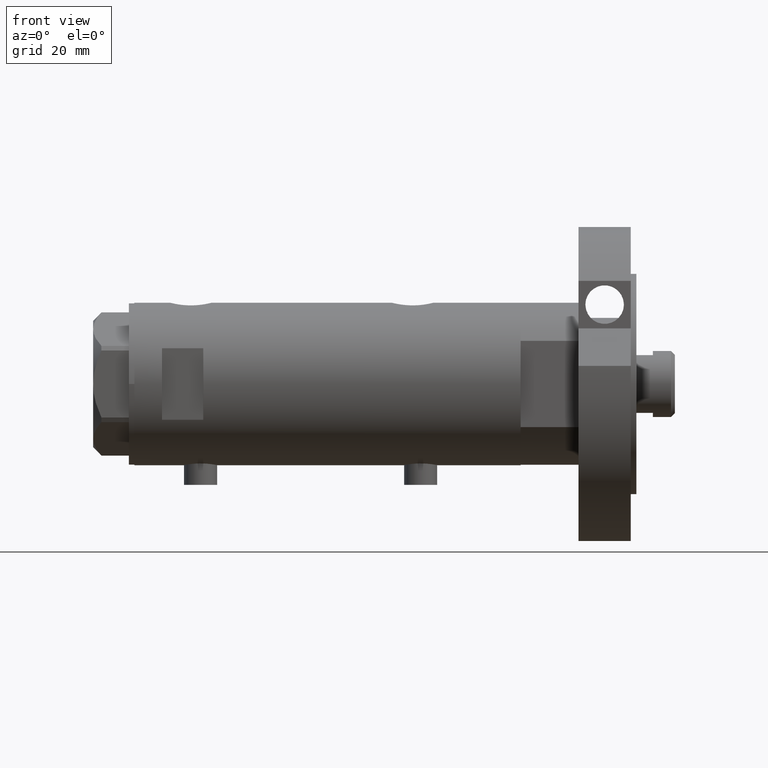
[diagram: clean part render]
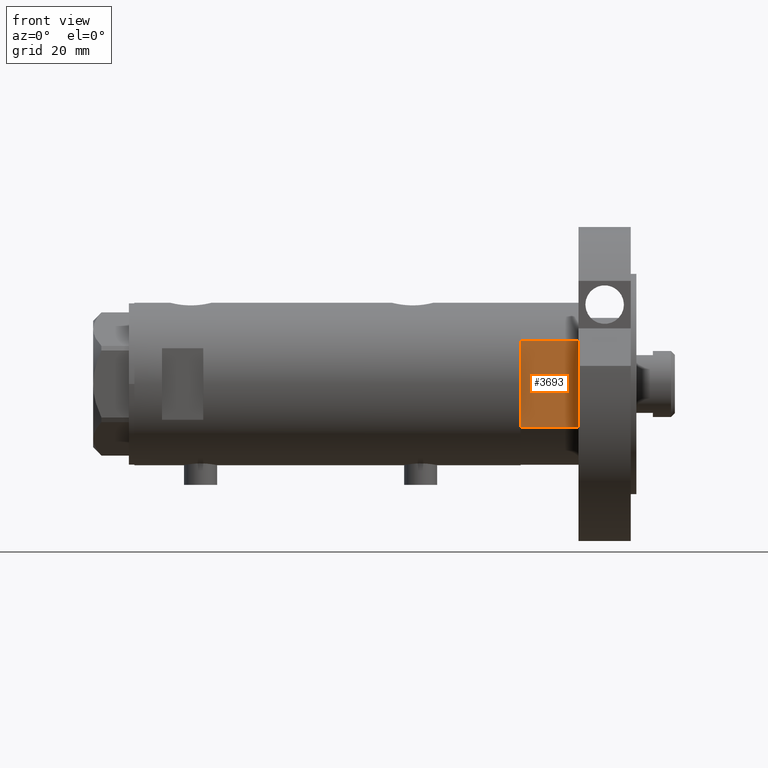
[diagram: same view with one face highlighted and labeled with its STEP entity id]
A machine part, front view. The second image highlights one B-rep face of the part: STEP entity #3693.
In plain terms, the highlighted planar face has unit normal (-0, 1, 0).
Its self-contained STEP definition (entity closure, byte-faithful):
#130 = VERTEX_POINT ( 'NONE', #529 ) ;
#258 = LINE ( 'NONE', #1303, #2573 ) ;
#330 = VERTEX_POINT ( 'NONE', #3723 ) ;
#425 = VERTEX_POINT ( 'NONE', #1024 ) ;
#449 = DIRECTION ( 'NONE',  ( 0.000000000000000000, -0.000000000000000000, 1.000000000000000000 ) ) ;
#529 = CARTESIAN_POINT ( 'NONE',  ( -15.66045976336582690, -25.00000000000000000, 0.000000000000000000 ) ) ;
#531 = LINE ( 'NONE', #2404, #1854 ) ;
#556 = ORIENTED_EDGE ( 'NONE', *, *, #3583, .T. ) ;
#633 = EDGE_CURVE ( 'NONE', #425, #330, #2866, .T. ) ;
#698 = VECTOR ( 'NONE', #1731, 1000.000000000000000 ) ;
#753 = DIRECTION ( 'NONE',  ( -1.000000000000000000, -0.000000000000000000, -0.000000000000000000 ) ) ;
#809 = LINE ( 'NONE', #5958, #3343 ) ;
#858 = DIRECTION ( 'NONE',  ( -1.000000000000000000, -0.000000000000000000, -0.000000000000000000 ) ) ;
#916 = DIRECTION ( 'NONE',  ( -0.000000000000000000, 1.000000000000000000, 0.000000000000000000 ) ) ;
#1024 = CARTESIAN_POINT ( 'NONE',  ( 15.66045976336583401, -25.00000000000000000, 0.000000000000000000 ) ) ;
#1212 = EDGE_CURVE ( 'NONE', #425, #2294, #5090, .T. ) ;
#1303 = CARTESIAN_POINT ( 'NONE',  ( -15.66045976336583401, -25.00000000000000000, 0.000000000000000000 ) ) ;
#1325 = DIRECTION ( 'NONE',  ( -1.000000000000000000, -0.000000000000000000, -0.000000000000000000 ) ) ;
#1439 = VECTOR ( 'NONE', #858, 1000.000000000000000 ) ;
#1710 = DIRECTION ( 'NONE',  ( -1.000000000000000000, -0.000000000000000000, -0.000000000000000000 ) ) ;
#1731 = DIRECTION ( 'NONE',  ( -0.000000000000000000, -0.000000000000000000, 1.000000000000000000 ) ) ;
#1790 = ORIENTED_EDGE ( 'NONE', *, *, #633, .T. ) ;
#1854 = VECTOR ( 'NONE', #1325, 1000.000000000000000 ) ;
#2251 = VERTEX_POINT ( 'NONE', #3319 ) ;
#2294 = VERTEX_POINT ( 'NONE', #2470 ) ;
#2321 = PLANE ( 'NONE',  #3247 ) ;
#2404 = CARTESIAN_POINT ( 'NONE',  ( -15.66045976336583401, -25.00000000000000000, 0.000000000000000000 ) ) ;
#2470 = CARTESIAN_POINT ( 'NONE',  ( 7.141428428542853091, -25.00000000000000000, 0.000000000000000000 ) ) ;
#2573 = VECTOR ( 'NONE', #753, 1000.000000000000000 ) ;
#2601 = CARTESIAN_POINT ( 'NONE',  ( 15.66045976336583401, -25.00000000000000000, 0.000000000000000000 ) ) ;
#2866 = LINE ( 'NONE', #2601, #3522 ) ;
#3001 = ORIENTED_EDGE ( 'NONE', *, *, #5767, .F. ) ;
#3186 = CARTESIAN_POINT ( 'NONE',  ( -15.66045976336583401, -25.00000000000000000, 0.000000000000000000 ) ) ;
#3220 = FACE_OUTER_BOUND ( 'NONE', #3308, .T. ) ;
#3247 = AXIS2_PLACEMENT_3D ( 'NONE', #6079, #916, #449 ) ;
#3308 = EDGE_LOOP ( 'NONE', ( #556, #4195, #5686, #3001, #6007, #1790 ) ) ;
#3312 = EDGE_CURVE ( 'NONE', #2251, #130, #531, .T. ) ;
#3319 = CARTESIAN_POINT ( 'NONE',  ( -7.141428428542853091, -25.00000000000000000, 0.000000000000000000 ) ) ;
#3343 = VECTOR ( 'NONE', #1710, 1000.000000000000000 ) ;
#3522 = VECTOR ( 'NONE', #5899, 1000.000000000000000 ) ;
#3583 = EDGE_CURVE ( 'NONE', #330, #4292, #809, .T. ) ;
#3682 = LINE ( 'NONE', #3186, #698 ) ;
#3693 = ADVANCED_FACE ( 'NONE', ( #3220 ), #2321, .F. ) ;
#3723 = CARTESIAN_POINT ( 'NONE',  ( 15.66045976336583045, -25.00000000000000000, 21.00000000000000355 ) ) ;
#4195 = ORIENTED_EDGE ( 'NONE', *, *, #4886, .F. ) ;
#4292 = VERTEX_POINT ( 'NONE', #4332 ) ;
#4332 = CARTESIAN_POINT ( 'NONE',  ( -15.66045976336583045, -24.99999999999999645, 20.99999999999999645 ) ) ;
#4886 = EDGE_CURVE ( 'NONE', #130, #4292, #3682, .T. ) ;
#4971 = CARTESIAN_POINT ( 'NONE',  ( -15.66045976336583401, -25.00000000000000000, 0.000000000000000000 ) ) ;
#5090 = LINE ( 'NONE', #4971, #1439 ) ;
#5686 = ORIENTED_EDGE ( 'NONE', *, *, #3312, .F. ) ;
#5767 = EDGE_CURVE ( 'NONE', #2294, #2251, #258, .T. ) ;
#5899 = DIRECTION ( 'NONE',  ( -0.000000000000000000, -0.000000000000000000, 1.000000000000000000 ) ) ;
#5958 = CARTESIAN_POINT ( 'NONE',  ( -15.66045976336583401, -25.00000000000000000, 21.00000000000000000 ) ) ;
#6007 = ORIENTED_EDGE ( 'NONE', *, *, #1212, .F. ) ;
#6079 = CARTESIAN_POINT ( 'NONE',  ( -15.66045976336583401, -25.00000000000000000, 0.000000000000000000 ) ) ;